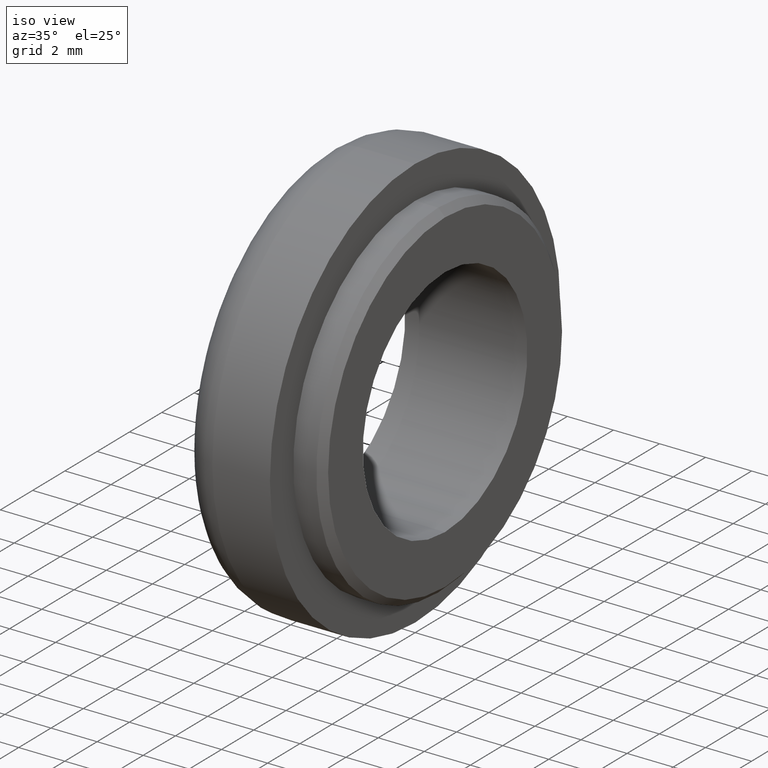
[diagram: clean part render]
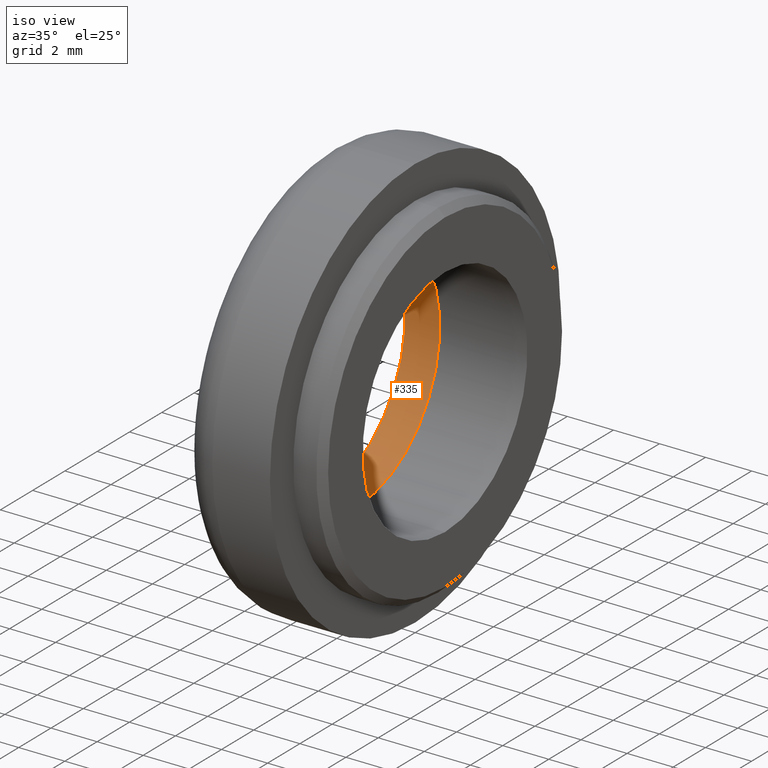
[diagram: same view with one face highlighted and labeled with its STEP entity id]
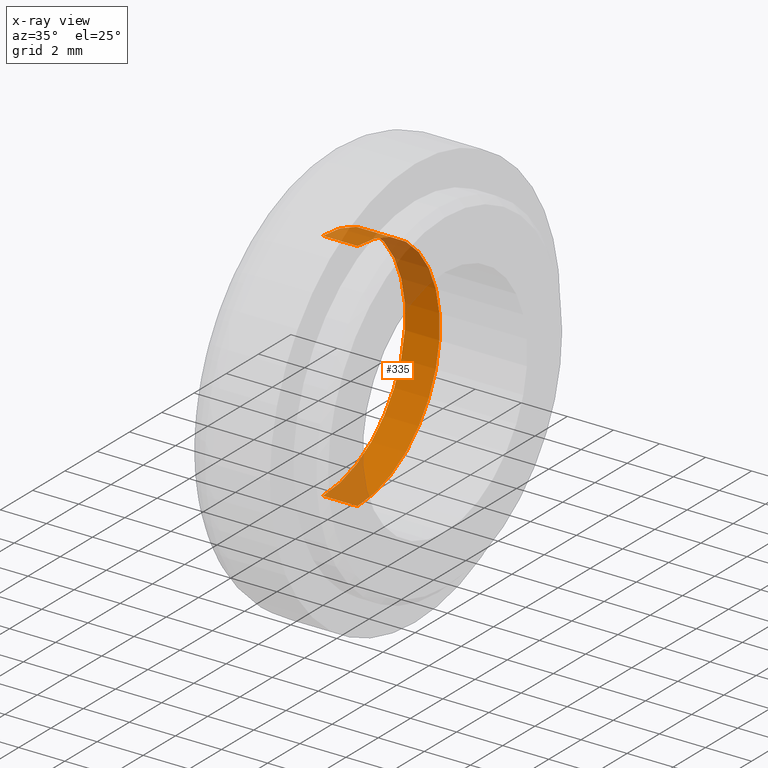
[diagram: x-ray of the same camera — body ghosted, the highlighted face saturated]
A machine part, iso view. The second image highlights one B-rep face of the part: STEP entity #335.
The next image is the same camera in x-ray: the body ghosted, the highlighted face saturated — about 33% of this face is hidden behind the body in this view.
In plain terms, the highlighted cylindrical surface (partial cylindrical patch) has radius 5.1 mm, axis along (-1, 0, 0).
Its self-contained STEP definition (entity closure, byte-faithful):
#48 = AXIS2_PLACEMENT_3D ( 'NONE', #637, #621, #547 ) ;
#59 = CARTESIAN_POINT ( 'NONE',  ( 0.0000000000000000000, 0.0000000000000000000, 0.0000000000000000000 ) ) ;
#77 = CARTESIAN_POINT ( 'NONE',  ( 1.500000000000000000, 6.245698675651500800E-016, -5.099999999999999600 ) ) ;
#106 = CYLINDRICAL_SURFACE ( 'NONE', #48, 5.099999999999999600 ) ;
#107 = AXIS2_PLACEMENT_3D ( 'NONE', #665, #419, #563 ) ;
#143 = ORIENTED_EDGE ( 'NONE', *, *, #441, .T. ) ;
#166 = CARTESIAN_POINT ( 'NONE',  ( 0.0000000000000000000, 6.245698675651500800E-016, -5.099999999999999600 ) ) ;
#179 = ORIENTED_EDGE ( 'NONE', *, *, #684, .F. ) ;
#213 = ORIENTED_EDGE ( 'NONE', *, *, #636, .F. ) ;
#219 = CARTESIAN_POINT ( 'NONE',  ( 4.000000000000000000, 6.245698675651500800E-016, -5.099999999999999600 ) ) ;
#228 = CIRCLE ( 'NONE', #107, 5.099999999999999600 ) ;
#239 = VERTEX_POINT ( 'NONE', #365 ) ;
#281 = VERTEX_POINT ( 'NONE', #77 ) ;
#335 = ADVANCED_FACE ( 'NONE', ( #649 ), #106, .F. ) ;
#351 = DIRECTION ( 'NONE',  ( -1.000000000000000000, 0.0000000000000000000, 0.0000000000000000000 ) ) ;
#365 = CARTESIAN_POINT ( 'NONE',  ( 0.0000000000000000000, 0.0000000000000000000, 5.099999999999999600 ) ) ;
#419 = DIRECTION ( 'NONE',  ( -1.000000000000000000, -0.0000000000000000000, -0.0000000000000000000 ) ) ;
#436 = LINE ( 'NONE', #219, #456 ) ;
#441 = EDGE_CURVE ( 'NONE', #580, #239, #582, .T. ) ;
#456 = VECTOR ( 'NONE', #351, 1000.000000000000000 ) ;
#461 = DIRECTION ( 'NONE',  ( -1.000000000000000000, 0.0000000000000000000, 0.0000000000000000000 ) ) ;
#465 = CARTESIAN_POINT ( 'NONE',  ( 4.000000000000000000, 0.0000000000000000000, 5.099999999999999600 ) ) ;
#498 = AXIS2_PLACEMENT_3D ( 'NONE', #59, #633, #668 ) ;
#526 = VECTOR ( 'NONE', #461, 1000.000000000000000 ) ;
#547 = DIRECTION ( 'NONE',  ( 0.0000000000000000000, 0.0000000000000000000, 1.000000000000000000 ) ) ;
#563 = DIRECTION ( 'NONE',  ( 0.0000000000000000000, 0.0000000000000000000, -1.000000000000000000 ) ) ;
#566 = EDGE_LOOP ( 'NONE', ( #179, #620, #143, #213 ) ) ;
#580 = VERTEX_POINT ( 'NONE', #647 ) ;
#582 = LINE ( 'NONE', #465, #526 ) ;
#598 = EDGE_CURVE ( 'NONE', #580, #281, #228, .T. ) ;
#620 = ORIENTED_EDGE ( 'NONE', *, *, #598, .F. ) ;
#621 = DIRECTION ( 'NONE',  ( -1.000000000000000000, 0.0000000000000000000, 0.0000000000000000000 ) ) ;
#627 = CIRCLE ( 'NONE', #498, 5.099999999999999600 ) ;
#633 = DIRECTION ( 'NONE',  ( 1.000000000000000000, 0.0000000000000000000, 0.0000000000000000000 ) ) ;
#636 = EDGE_CURVE ( 'NONE', #645, #239, #627, .T. ) ;
#637 = CARTESIAN_POINT ( 'NONE',  ( 4.000000000000000000, 0.0000000000000000000, 0.0000000000000000000 ) ) ;
#645 = VERTEX_POINT ( 'NONE', #166 ) ;
#647 = CARTESIAN_POINT ( 'NONE',  ( 1.500000000000000000, 0.0000000000000000000, 5.099999999999999600 ) ) ;
#649 = FACE_OUTER_BOUND ( 'NONE', #566, .T. ) ;
#665 = CARTESIAN_POINT ( 'NONE',  ( 1.500000000000000000, 0.0000000000000000000, 0.0000000000000000000 ) ) ;
#668 = DIRECTION ( 'NONE',  ( 0.0000000000000000000, 0.0000000000000000000, -1.000000000000000000 ) ) ;
#684 = EDGE_CURVE ( 'NONE', #281, #645, #436, .T. ) ;